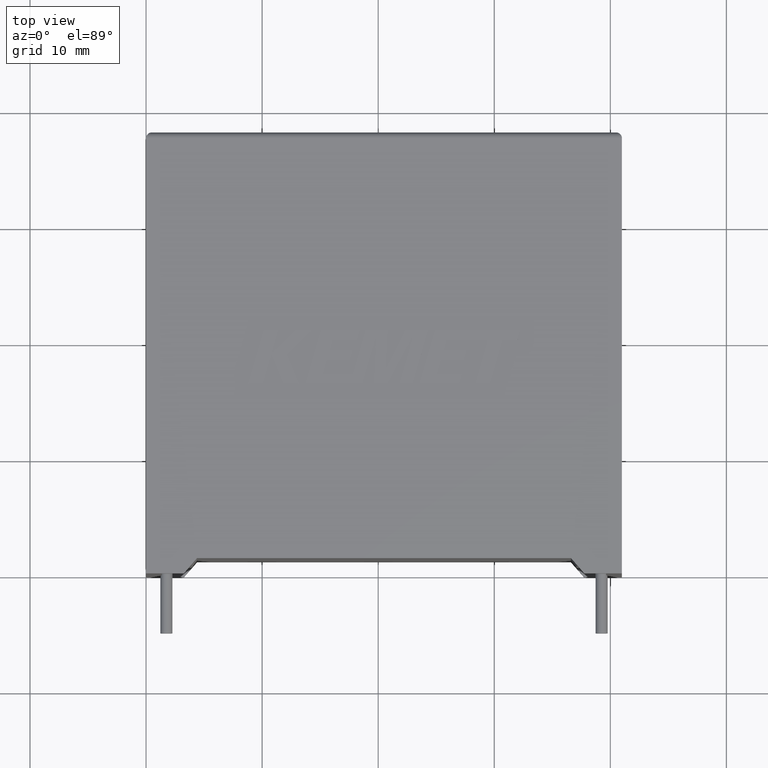
[diagram: clean part render]
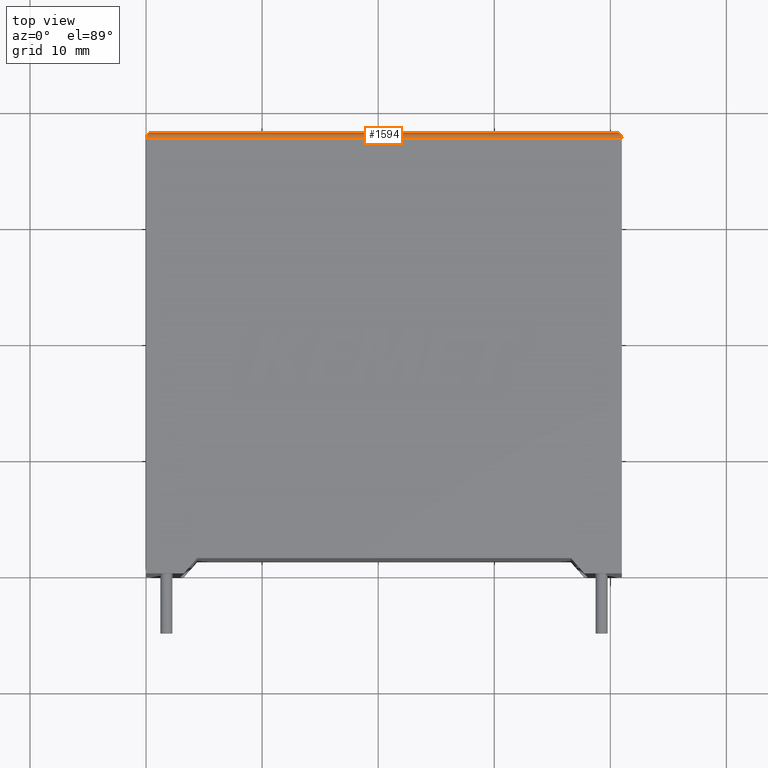
[diagram: same view with one face highlighted and labeled with its STEP entity id]
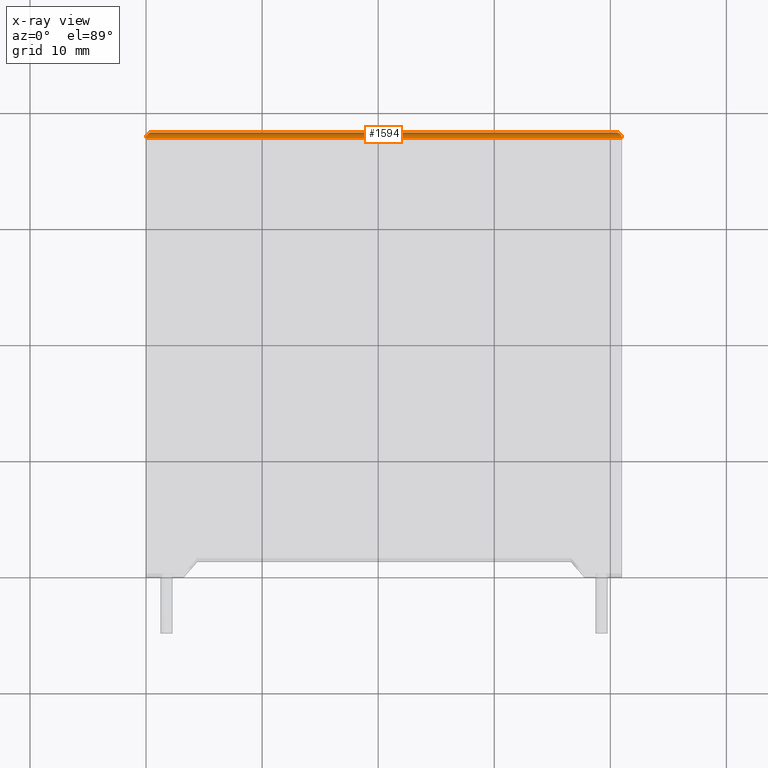
[diagram: x-ray of the same camera — body ghosted, the highlighted face saturated]
A machine part, top view. The second image highlights one B-rep face of the part: STEP entity #1594.
The next image is the same camera in x-ray: the body ghosted, the highlighted face saturated — about 0% of this face is hidden behind the body in this view.
In plain terms, the highlighted cylindrical surface (edge-blend (fillet) strip) has radius 0.5 mm, axis along (-1, 0, 0).
Its self-contained STEP definition (entity closure, byte-faithful):
#271 = ORIENTED_EDGE ( 'NONE', *, *, #2829, .T. ) ;
#373 =( BOUNDED_CURVE ( )  B_SPLINE_CURVE ( 3, ( #1650, #2619, #2904, #686 ),
 .UNSPECIFIED., .F., .T. ) 
 B_SPLINE_CURVE_WITH_KNOTS ( ( 4, 4 ),
 ( 3.141592653589793116, 4.712388980384689674 ),
 .UNSPECIFIED. ) 
 CURVE ( )  GEOMETRIC_REPRESENTATION_ITEM ( )  RATIONAL_B_SPLINE_CURVE ( ( 1.000000000000000000, 0.8047378541243649375, 0.8047378541243649375, 1.000000000000000000 ) ) 
 REPRESENTATION_ITEM ( '' )  );
#466 = CARTESIAN_POINT ( 'NONE',  ( 0.000000000000000000, 37.50000000000000000, 21.00000000000000000 ) ) ;
#622 = CARTESIAN_POINT ( 'NONE',  ( 0.000000000000000000, 37.50000000000000000, 20.50000000000000000 ) ) ;
#636 = EDGE_CURVE ( 'NONE', #1426, #647, #2822, .T. ) ;
#647 = VERTEX_POINT ( 'NONE', #1580 ) ;
#686 = CARTESIAN_POINT ( 'NONE',  ( 40.49999999999999289, 38.00000000000000000, 20.50000000000000000 ) ) ;
#740 = CARTESIAN_POINT ( 'NONE',  ( 0.000000000000000000, 37.50000000000000000, 21.00000000000000000 ) ) ;
#791 = CARTESIAN_POINT ( 'NONE',  ( 0.2071067811865506259, 37.99999999999999289, 20.79289321881345032 ) ) ;
#889 = DIRECTION ( 'NONE',  ( 0.000000000000000000, 0.000000000000000000, 1.000000000000000000 ) ) ;
#956 = FACE_OUTER_BOUND ( 'NONE', #1163, .T. ) ;
#1143 = VECTOR ( 'NONE', #1941, 1000.000000000000000 ) ;
#1163 = EDGE_LOOP ( 'NONE', ( #271, #1522, #2543, #1761 ) ) ;
#1185 = VERTEX_POINT ( 'NONE', #1853 ) ;
#1399 = CARTESIAN_POINT ( 'NONE',  ( 41.00000000000000000, 37.50000000000000000, 21.00000000000000000 ) ) ;
#1426 = VERTEX_POINT ( 'NONE', #2587 ) ;
#1522 = ORIENTED_EDGE ( 'NONE', *, *, #3056, .F. ) ;
#1580 = CARTESIAN_POINT ( 'NONE',  ( 0.4999999999999998890, 38.00000000000000000, 20.50000000000000000 ) ) ;
#1594 = ADVANCED_FACE ( 'NONE', ( #956 ), #2113, .T. ) ;
#1650 = CARTESIAN_POINT ( 'NONE',  ( 41.00000000000000000, 37.50000000000000000, 21.00000000000000000 ) ) ;
#1761 = ORIENTED_EDGE ( 'NONE', *, *, #1915, .F. ) ;
#1781 = CARTESIAN_POINT ( 'NONE',  ( 0.4999999999999998890, 38.00000000000000000, 20.50000000000000000 ) ) ;
#1853 = CARTESIAN_POINT ( 'NONE',  ( 40.49999999999999289, 38.00000000000000000, 20.50000000000000000 ) ) ;
#1915 = EDGE_CURVE ( 'NONE', #2835, #1426, #2368, .T. ) ;
#1941 = DIRECTION ( 'NONE',  ( -1.000000000000000000, 0.000000000000000000, 0.000000000000000000 ) ) ;
#2017 = CARTESIAN_POINT ( 'NONE',  ( 4.064709941040817306E-15, 37.79289321881344677, 20.99999999999999645 ) ) ;
#2113 = CYLINDRICAL_SURFACE ( 'NONE', #3190, 0.5000000000000004441 ) ;
#2323 = DIRECTION ( 'NONE',  ( 1.000000000000000000, -0.000000000000000000, -0.000000000000000000 ) ) ;
#2325 = DIRECTION ( 'NONE',  ( -1.000000000000000000, 0.000000000000000000, 0.000000000000000000 ) ) ;
#2368 = LINE ( 'NONE', #466, #1143 ) ;
#2543 = ORIENTED_EDGE ( 'NONE', *, *, #636, .F. ) ;
#2562 = CARTESIAN_POINT ( 'NONE',  ( 0.000000000000000000, 38.00000000000000000, 20.50000000000000000 ) ) ;
#2587 = CARTESIAN_POINT ( 'NONE',  ( 0.000000000000000000, 37.50000000000000000, 21.00000000000000000 ) ) ;
#2619 = CARTESIAN_POINT ( 'NONE',  ( 40.99999999999999289, 37.79289321881344677, 21.00000000000000000 ) ) ;
#2822 =( BOUNDED_CURVE ( )  B_SPLINE_CURVE ( 3, ( #740, #2017, #791, #1781 ),
 .UNSPECIFIED., .F., .T. ) 
 B_SPLINE_CURVE_WITH_KNOTS ( ( 4, 4 ),
 ( 1.387778780781445202E-14, 1.570796326794896558 ),
 .UNSPECIFIED. ) 
 CURVE ( )  GEOMETRIC_REPRESENTATION_ITEM ( )  RATIONAL_B_SPLINE_CURVE ( ( 1.000000000000000000, 0.8047378541243681571, 0.8047378541243681571, 1.000000000000000000 ) ) 
 REPRESENTATION_ITEM ( '' )  );
#2823 = LINE ( 'NONE', #2562, #3143 ) ;
#2829 = EDGE_CURVE ( 'NONE', #2835, #1185, #373, .T. ) ;
#2835 = VERTEX_POINT ( 'NONE', #1399 ) ;
#2904 = CARTESIAN_POINT ( 'NONE',  ( 40.79289321881344677, 38.00000000000000000, 20.79289321881345387 ) ) ;
#3056 = EDGE_CURVE ( 'NONE', #647, #1185, #2823, .T. ) ;
#3143 = VECTOR ( 'NONE', #2323, 1000.000000000000000 ) ;
#3190 = AXIS2_PLACEMENT_3D ( 'NONE', #622, #2325, #889 ) ;